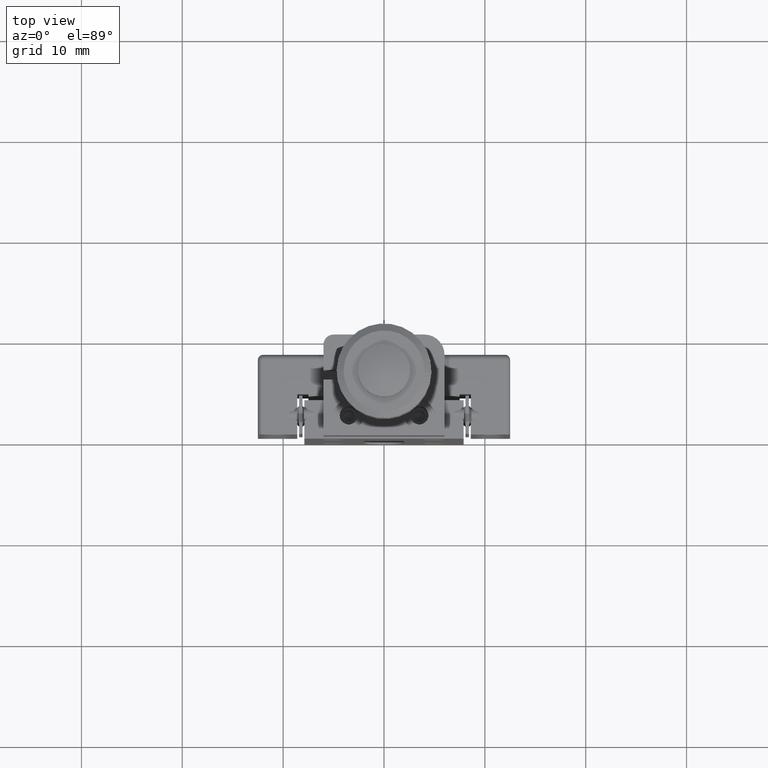
[diagram: clean part render]
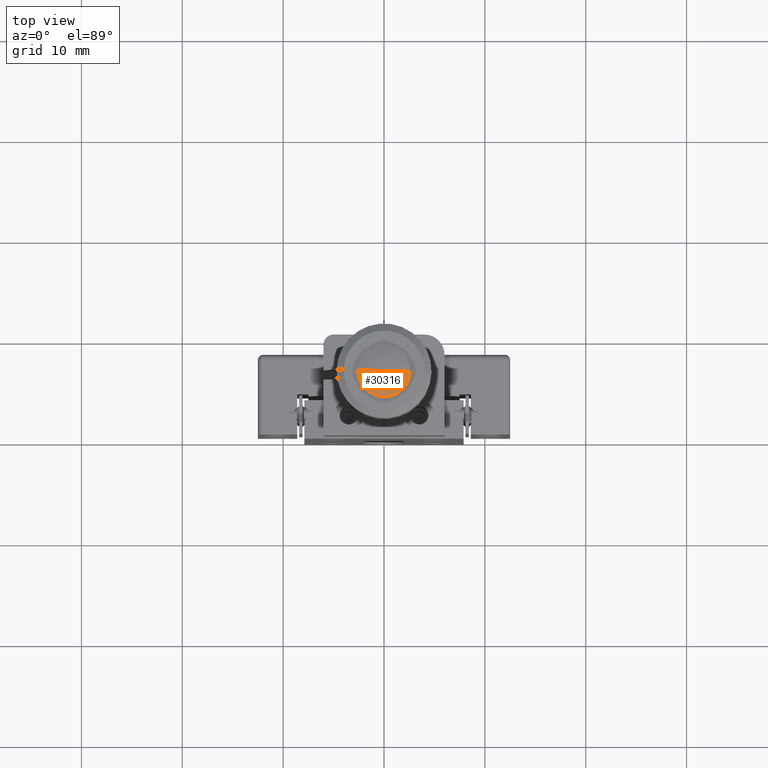
[diagram: same view with one face highlighted and labeled with its STEP entity id]
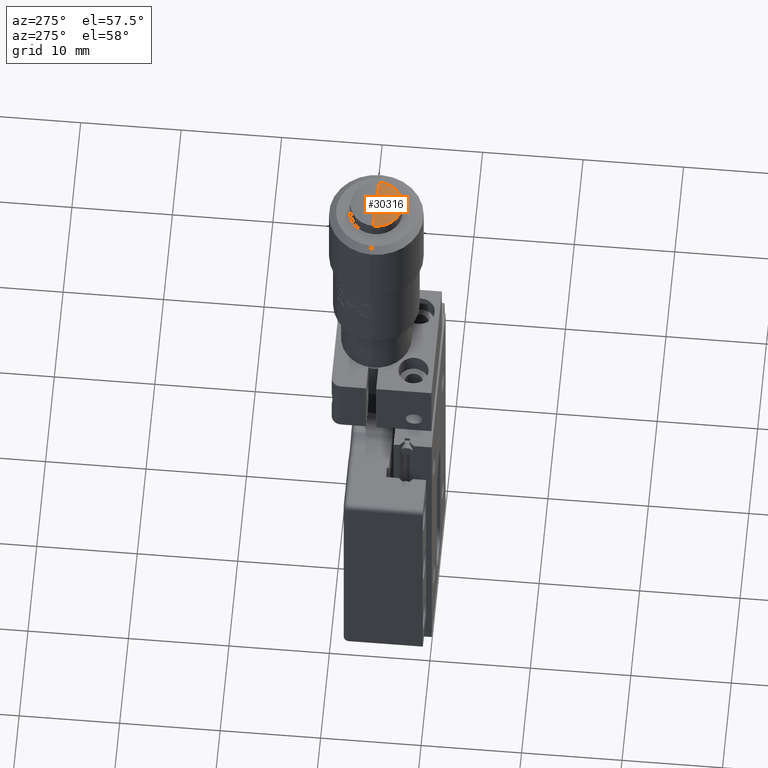
[diagram: same view with one face highlighted and labeled with its STEP entity id]
A machine part, top view. The second image highlights one B-rep face of the part: STEP entity #30316.
A second angle (auxiliary view) of the same face is appended — the face is thin or edge-on in the first view.
In plain terms, the highlighted toroidal blend (fillet) surface has major radius 0.0122 mm and minor (blend) radius 6.9487 mm.
Its self-contained STEP definition (entity closure, byte-faithful):
#3545 = CARTESIAN_POINT ( 'NONE',  ( -2.598888581753316300, 6.276014075224241900, 49.19746993000001100 ) ) ;
#3951 = CARTESIAN_POINT ( 'NONE',  ( -0.01218825583151746300, 6.200356490463617500, 42.74866073000001200 ) ) ;
#4061 = CARTESIAN_POINT ( 'NONE',  ( 2.598888581753370900, 6.123985924775580800, 49.19746993000001100 ) ) ;
#5416 = DIRECTION ( 'NONE',  ( 0.9995725314435851500, -0.02923618277858815200, 0.0000000000000000000 ) ) ;
#5502 = AXIS2_PLACEMENT_3D ( 'NONE', #3951, #22933, #9550 ) ;
#6386 = ORIENTED_EDGE ( 'NONE', *, *, #13843, .T. ) ;
#7411 = CIRCLE ( 'NONE', #35041, 2.600000000000009900 ) ;
#8027 = CARTESIAN_POINT ( 'NONE',  ( 2.752726256679893100E-014, 6.199999999999918500, 49.19746993000001100 ) ) ;
#9338 = CARTESIAN_POINT ( 'NONE',  ( 2.663905247068819800E-014, 6.199999999999910500, 42.74866073000001200 ) ) ;
#9550 = DIRECTION ( 'NONE',  ( -0.9995725314435850400, 0.02923618277858841200, 0.0000000000000000000 ) ) ;
#9634 = CARTESIAN_POINT ( 'NONE',  ( 2.706925970029486300E-014, 6.199999999999918500, 49.69731053147904000 ) ) ;
#10598 = FACE_OUTER_BOUND ( 'NONE', #12026, .T. ) ;
#11823 = DIRECTION ( 'NONE',  ( 0.9995725314435851500, -0.02923618277858834600, -1.058219466354789700E-016 ) ) ;
#12026 = EDGE_LOOP ( 'NONE', ( #12683, #31040, #6386 ) ) ;
#12683 = ORIENTED_EDGE ( 'NONE', *, *, #21132, .F. ) ;
#13331 = CIRCLE ( 'NONE', #30292, 6.948660500000001700 ) ;
#13791 = DIRECTION ( 'NONE',  ( 0.9995725314435850400, -0.02923618277858828700, 0.0000000000000000000 ) ) ;
#13843 = EDGE_CURVE ( 'NONE', #24008, #25502, #13331, .T. ) ;
#21132 = EDGE_CURVE ( 'NONE', #23526, #25502, #26654, .T. ) ;
#21483 = DIRECTION ( 'NONE',  ( -0.02923618277858830100, -0.9995725314435852700, 1.794212131459379400E-016 ) ) ;
#21665 = DIRECTION ( 'NONE',  ( 1.110223024626043800E-016, 1.762506864451433400E-016, 1.000000000000000000 ) ) ;
#21842 = CARTESIAN_POINT ( 'NONE',  ( 0.01218825583157074000, 6.199643509536203500, 42.74866073000001200 ) ) ;
#22933 = DIRECTION ( 'NONE',  ( 0.02923618277858842200, 0.9995725314435852700, -1.794212131459379600E-016 ) ) ;
#22955 = AXIS2_PLACEMENT_3D ( 'NONE', #9338, #25684, #11823 ) ;
#23526 = VERTEX_POINT ( 'NONE', #3545 ) ;
#24008 = VERTEX_POINT ( 'NONE', #4061 ) ;
#25502 = VERTEX_POINT ( 'NONE', #9634 ) ;
#25684 = DIRECTION ( 'NONE',  ( 1.110223024626043800E-016, 1.762506864451433400E-016, 1.000000000000000000 ) ) ;
#26654 = CIRCLE ( 'NONE', #5502, 6.948660500000001700 ) ;
#30292 = AXIS2_PLACEMENT_3D ( 'NONE', #21842, #21483, #13791 ) ;
#30316 = ADVANCED_FACE ( 'NONE', ( #10598 ), #31396, .T. ) ;
#31040 = ORIENTED_EDGE ( 'NONE', *, *, #34827, .T. ) ;
#31396 = TOROIDAL_SURFACE ( 'NONE', #22955, 0.01219346815577432000, 6.948660499999999900 ) ;
#34827 = EDGE_CURVE ( 'NONE', #23526, #24008, #7411, .T. ) ;
#35041 = AXIS2_PLACEMENT_3D ( 'NONE', #8027, #21665, #5416 ) ;